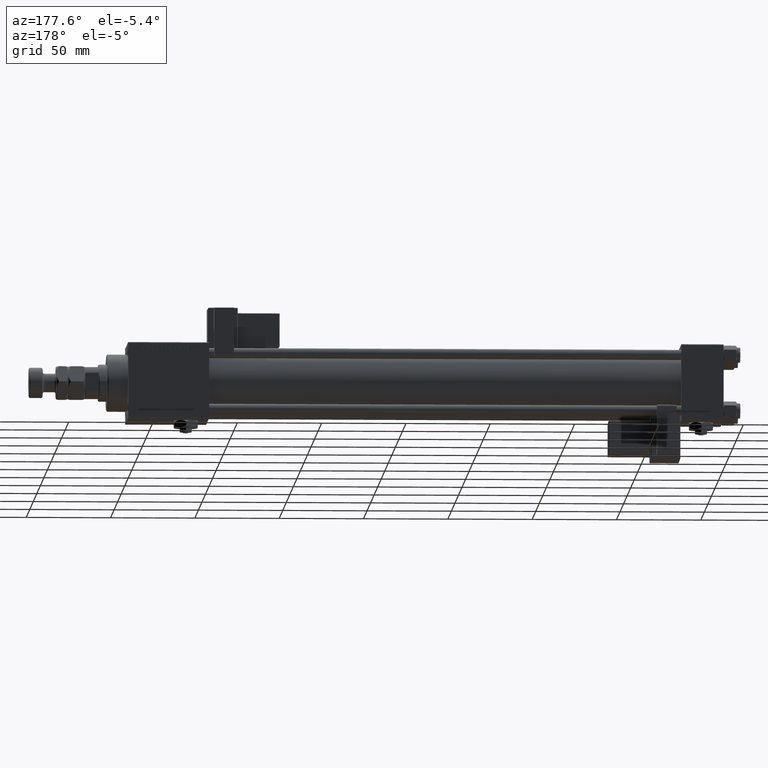
[diagram: clean part render]
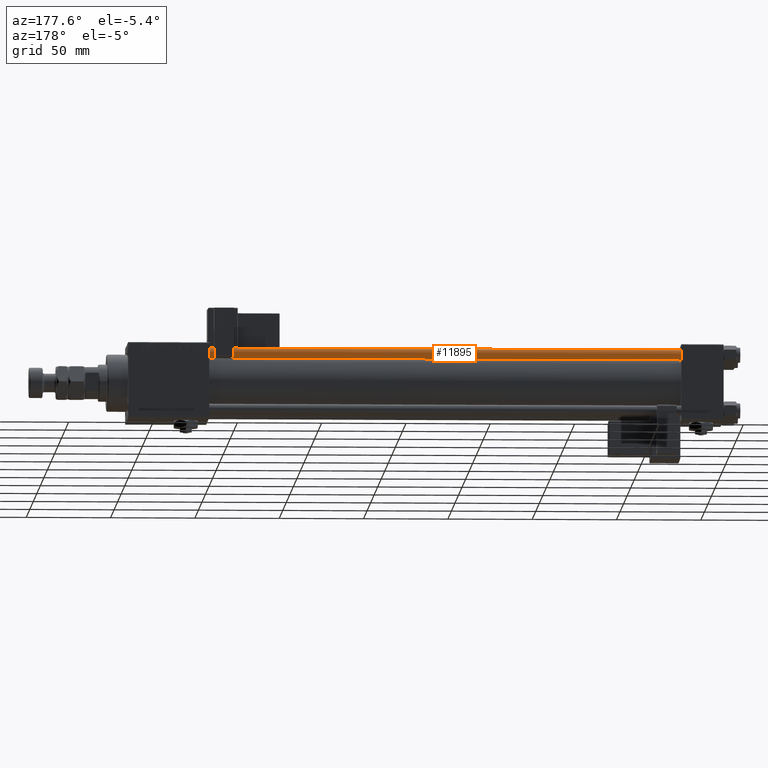
[diagram: same view with one face highlighted and labeled with its STEP entity id]
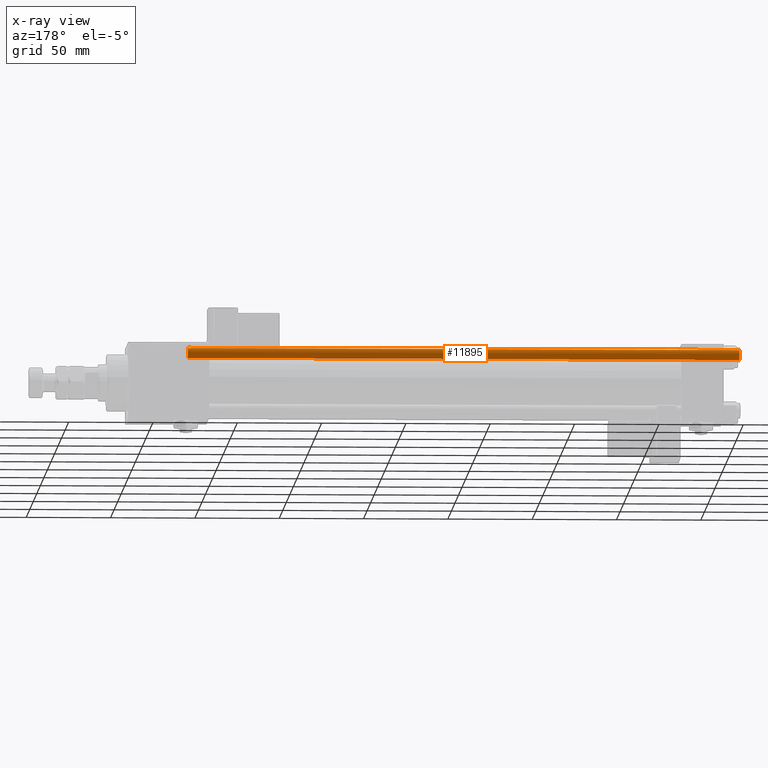
[diagram: x-ray of the same camera — body ghosted, the highlighted face saturated]
A machine part, auxiliary view. The second image highlights one B-rep face of the part: STEP entity #11895.
The next image is the same camera in x-ray: the body ghosted, the highlighted face saturated — about 0% of this face is hidden behind the body in this view.
In plain terms, the highlighted cylindrical surface (edge-blend (fillet) strip) has radius 3 mm, axis along (-1, 0, 0).
Its self-contained STEP definition (entity closure, byte-faithful):
#2954 = CARTESIAN_POINT ( 'NONE',  ( -3.000000000000000444, 0.000000000000000000, 0.5000000000000559552 ) ) ;
#4028 = ORIENTED_EDGE ( 'NONE', *, *, #20765, .T. ) ;
#4279 = EDGE_CURVE ( 'NONE', #15476, #6941, #31150, .T. ) ;
#6336 = DIRECTION ( 'NONE',  ( -0.000000000000000000, -0.000000000000000000, -1.000000000000000000 ) ) ;
#6941 = VERTEX_POINT ( 'NONE', #23121 ) ;
#7188 = CARTESIAN_POINT ( 'NONE',  ( 3.000000000000000444, 3.673940397442060361E-16, 328.0000000000000000 ) ) ;
#7725 = DIRECTION ( 'NONE',  ( 0.000000000000000000, 0.000000000000000000, -1.000000000000000000 ) ) ;
#9551 = CARTESIAN_POINT ( 'NONE',  ( 0.000000000000000000, 0.000000000000000000, 328.0000000000000000 ) ) ;
#11895 = ADVANCED_FACE ( 'NONE', ( #48784 ), #14355, .T. ) ;
#13867 = AXIS2_PLACEMENT_3D ( 'NONE', #42396, #7725, #51794 ) ;
#14355 = CYLINDRICAL_SURFACE ( 'NONE', #41731, 3.000000000000000444 ) ;
#15476 = VERTEX_POINT ( 'NONE', #35120 ) ;
#16738 = ORIENTED_EDGE ( 'NONE', *, *, #18197, .F. ) ;
#18197 = EDGE_CURVE ( 'NONE', #15476, #31995, #26227, .T. ) ;
#20765 = EDGE_CURVE ( 'NONE', #6941, #52597, #45299, .T. ) ;
#22455 = EDGE_CURVE ( 'NONE', #52597, #31995, #26644, .T. ) ;
#22792 = EDGE_LOOP ( 'NONE', ( #55699, #4028, #34331, #16738 ) ) ;
#23121 = CARTESIAN_POINT ( 'NONE',  ( 3.000000000000000444, 3.673940397442060361E-16, 327.5000000000000000 ) ) ;
#26227 = LINE ( 'NONE', #39295, #28252 ) ;
#26644 = CIRCLE ( 'NONE', #48391, 3.000000000000000444 ) ;
#28252 = VECTOR ( 'NONE', #34469, 1000.000000000000000 ) ;
#31150 = CIRCLE ( 'NONE', #13867, 3.000000000000000444 ) ;
#31995 = VERTEX_POINT ( 'NONE', #2954 ) ;
#32908 = DIRECTION ( 'NONE',  ( 1.000000000000000000, 0.000000000000000000, 0.000000000000000000 ) ) ;
#34331 = ORIENTED_EDGE ( 'NONE', *, *, #22455, .T. ) ;
#34469 = DIRECTION ( 'NONE',  ( -0.000000000000000000, -0.000000000000000000, -1.000000000000000000 ) ) ;
#35120 = CARTESIAN_POINT ( 'NONE',  ( -3.000000000000000444, 0.000000000000000000, 327.5000000000000000 ) ) ;
#39295 = CARTESIAN_POINT ( 'NONE',  ( -3.000000000000000444, 0.000000000000000000, 328.0000000000000000 ) ) ;
#40236 = DIRECTION ( 'NONE',  ( -1.000000000000000000, 0.000000000000000000, 0.000000000000000000 ) ) ;
#41165 = DIRECTION ( 'NONE',  ( -0.000000000000000000, -0.000000000000000000, 1.000000000000000000 ) ) ;
#41731 = AXIS2_PLACEMENT_3D ( 'NONE', #9551, #49061, #40236 ) ;
#42396 = CARTESIAN_POINT ( 'NONE',  ( 0.000000000000000000, 0.000000000000000000, 327.5000000000000000 ) ) ;
#42851 = VECTOR ( 'NONE', #6336, 1000.000000000000000 ) ;
#45299 = LINE ( 'NONE', #7188, #42851 ) ;
#46850 = CARTESIAN_POINT ( 'NONE',  ( 3.000000000000000444, 3.673940397442060361E-16, 0.5000000000000559552 ) ) ;
#48391 = AXIS2_PLACEMENT_3D ( 'NONE', #54557, #41165, #32908 ) ;
#48784 = FACE_OUTER_BOUND ( 'NONE', #22792, .T. ) ;
#49061 = DIRECTION ( 'NONE',  ( -0.000000000000000000, -0.000000000000000000, -1.000000000000000000 ) ) ;
#51794 = DIRECTION ( 'NONE',  ( 1.000000000000000000, 0.000000000000000000, 0.000000000000000000 ) ) ;
#52597 = VERTEX_POINT ( 'NONE', #46850 ) ;
#54557 = CARTESIAN_POINT ( 'NONE',  ( 0.000000000000000000, 0.000000000000000000, 0.5000000000000559552 ) ) ;
#55699 = ORIENTED_EDGE ( 'NONE', *, *, #4279, .T. ) ;